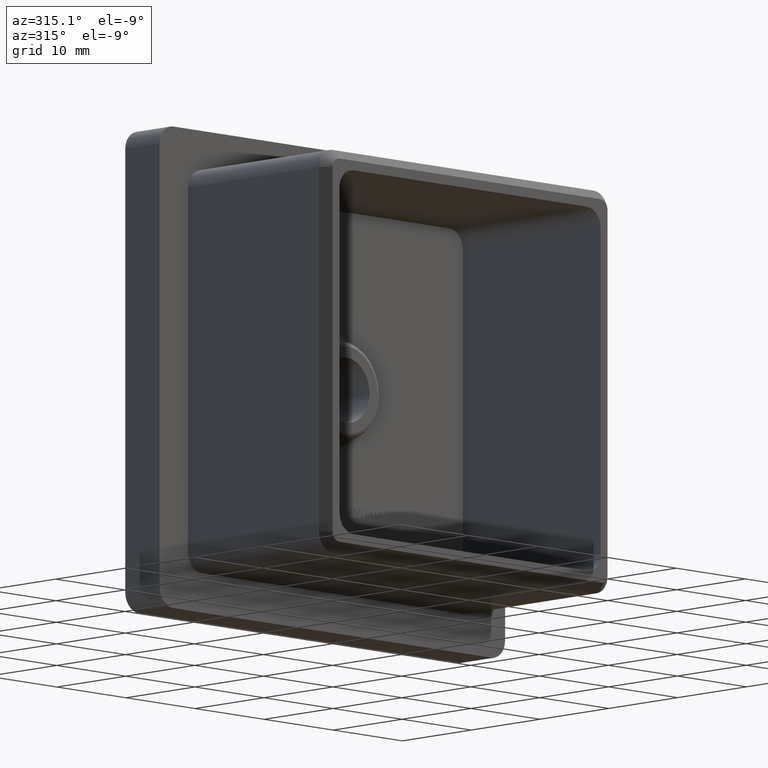
[diagram: clean part render]
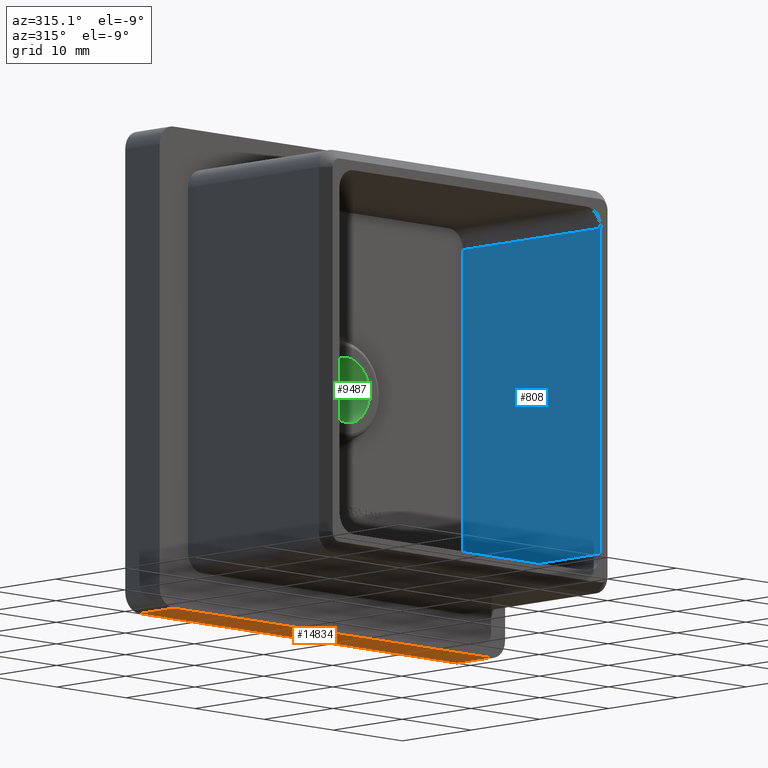
[diagram: same view with three faces highlighted in distinct colors, each labeled with its STEP entity id]
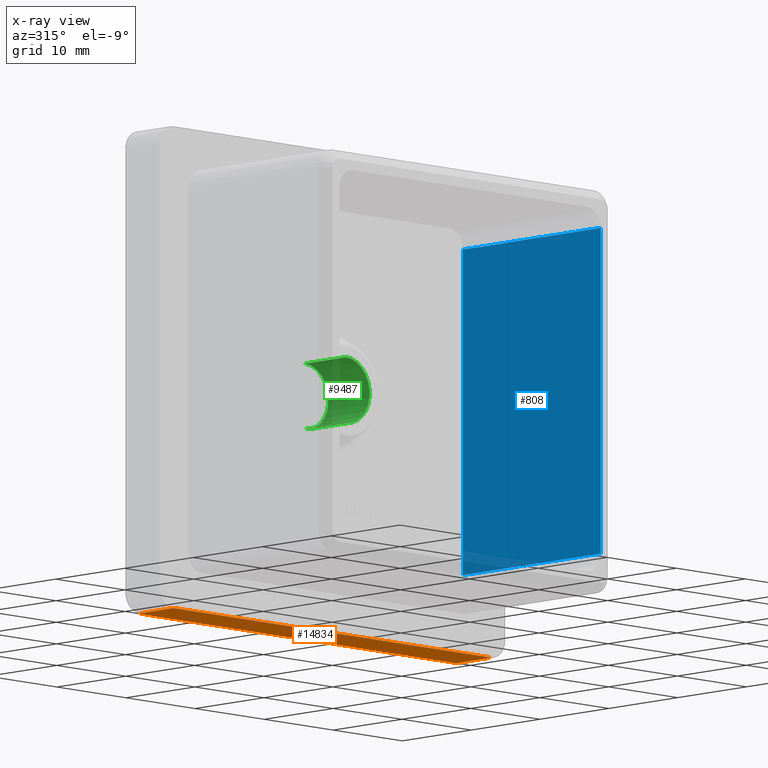
[diagram: x-ray of the same camera — body ghosted, the three highlighted faces saturated]
A machine part, auxiliary view with three faces highlighted in distinct colors.
The next image is the same camera in x-ray (body ghosted, the three faces saturated) — at least one of them is partly hidden behind the body in this view.
Their STEP definitions:

[orange] entity #14834 — the highlighted planar face has unit normal (0, 0, 1).
#54 = CARTESIAN_POINT ( 'NONE',  ( -25.00000000000000400, 5.000000000000000000, -25.00000000000000000 ) ) ;
#495 = EDGE_CURVE ( 'NONE', #12756, #3238, #11599, .T. ) ;
#689 = DIRECTION ( 'NONE',  ( -1.000000000000000000, -0.0000000000000000000, -0.0000000000000000000 ) ) ;
#1276 = VECTOR ( 'NONE', #15765, 1000.000000000000000 ) ;
#1290 = DIRECTION ( 'NONE',  ( 1.000000000000000000, 0.0000000000000000000, -0.0000000000000000000 ) ) ;
#2264 = ORIENTED_EDGE ( 'NONE', *, *, #14278, .T. ) ;
#2943 = EDGE_CURVE ( 'NONE', #10823, #10874, #16740, .T. ) ;
#2989 = DIRECTION ( 'NONE',  ( 0.0000000000000000000, 0.0000000000000000000, 1.000000000000000000 ) ) ;
#3238 = VERTEX_POINT ( 'NONE', #17752 ) ;
#3277 = FACE_OUTER_BOUND ( 'NONE', #18029, .T. ) ;
#3880 = CARTESIAN_POINT ( 'NONE',  ( -25.00000000000000400, 5.000000000000000000, -25.00000000000000000 ) ) ;
#5272 = CARTESIAN_POINT ( 'NONE',  ( 22.99999999999999600, 5.000000000000000000, -25.00000000000000000 ) ) ;
#5651 = PLANE ( 'NONE',  #11511 ) ;
#5796 = CARTESIAN_POINT ( 'NONE',  ( -23.00000000000000700, 5.000000000000000000, -25.00000000000000000 ) ) ;
#6418 = CARTESIAN_POINT ( 'NONE',  ( -25.00000000000000400, 0.0000000000000000000, -25.00000000000000000 ) ) ;
#8087 = CARTESIAN_POINT ( 'NONE',  ( -23.00000000000000700, 5.000000000000000000, -25.00000000000000000 ) ) ;
#8186 = LINE ( 'NONE', #5796, #1276 ) ;
#8247 = LINE ( 'NONE', #16365, #11771 ) ;
#8964 = VECTOR ( 'NONE', #689, 1000.000000000000000 ) ;
#9241 = DIRECTION ( 'NONE',  ( 0.0000000000000000000, -1.000000000000000000, 0.0000000000000000000 ) ) ;
#10823 = VERTEX_POINT ( 'NONE', #5272 ) ;
#10874 = VERTEX_POINT ( 'NONE', #8087 ) ;
#11484 = EDGE_CURVE ( 'NONE', #10823, #12756, #8247, .T. ) ;
#11511 = AXIS2_PLACEMENT_3D ( 'NONE', #54, #2989, #1290 ) ;
#11599 = LINE ( 'NONE', #6418, #8964 ) ;
#11771 = VECTOR ( 'NONE', #9241, 1000.000000000000000 ) ;
#12756 = VERTEX_POINT ( 'NONE', #15142 ) ;
#12904 = VECTOR ( 'NONE', #15265, 1000.000000000000000 ) ;
#13155 = ORIENTED_EDGE ( 'NONE', *, *, #2943, .F. ) ;
#14278 = EDGE_CURVE ( 'NONE', #3238, #10874, #8186, .T. ) ;
#14834 = ADVANCED_FACE ( 'NONE', ( #3277 ), #5651, .F. ) ;
#15142 = CARTESIAN_POINT ( 'NONE',  ( 22.99999999999999600, 0.0000000000000000000, -25.00000000000000000 ) ) ;
#15265 = DIRECTION ( 'NONE',  ( -1.000000000000000000, -0.0000000000000000000, -0.0000000000000000000 ) ) ;
#15478 = ORIENTED_EDGE ( 'NONE', *, *, #11484, .T. ) ;
#15693 = ORIENTED_EDGE ( 'NONE', *, *, #495, .T. ) ;
#15765 = DIRECTION ( 'NONE',  ( -0.0000000000000000000, 1.000000000000000000, -0.0000000000000000000 ) ) ;
#16365 = CARTESIAN_POINT ( 'NONE',  ( 22.99999999999999600, 5.000000000000000000, -25.00000000000000000 ) ) ;
#16740 = LINE ( 'NONE', #3880, #12904 ) ;
#17752 = CARTESIAN_POINT ( 'NONE',  ( -23.00000000000000700, 0.0000000000000000000, -25.00000000000000000 ) ) ;
#18029 = EDGE_LOOP ( 'NONE', ( #13155, #15478, #15693, #2264 ) ) ;

[blue] entity #808 — the highlighted planar face has unit normal (-1, 0, -0).
#43 = EDGE_CURVE ( 'NONE', #15660, #11366, #8084, .T. ) ;
#82 = DIRECTION ( 'NONE',  ( 0.0000000000000000000, 1.000000000000000000, 0.0000000000000000000 ) ) ;
#808 = ADVANCED_FACE ( 'NONE', ( #11379 ), #6576, .T. ) ;
#816 = VERTEX_POINT ( 'NONE', #13615 ) ;
#2398 = CARTESIAN_POINT ( 'NONE',  ( 18.89999999999999100, -20.00000000000000000, 16.89999999999999100 ) ) ;
#3068 = CARTESIAN_POINT ( 'NONE',  ( 18.89999999999999100, 0.0000000000000000000, 16.89999999999999100 ) ) ;
#3676 = CARTESIAN_POINT ( 'NONE',  ( 18.89999999999999100, 0.0000000000000000000, 16.89999999999999100 ) ) ;
#4276 = EDGE_CURVE ( 'NONE', #816, #13640, #4432, .T. ) ;
#4432 = LINE ( 'NONE', #18457, #8888 ) ;
#4800 = CARTESIAN_POINT ( 'NONE',  ( 18.89999999999999100, 0.0000000000000000000, -16.89999999999999500 ) ) ;
#5255 = CARTESIAN_POINT ( 'NONE',  ( 18.89999999999999100, 0.0000000000000000000, 18.89999999999999100 ) ) ;
#5496 = ORIENTED_EDGE ( 'NONE', *, *, #17670, .T. ) ;
#5765 = LINE ( 'NONE', #3068, #17369 ) ;
#5948 = EDGE_CURVE ( 'NONE', #13640, #11366, #5765, .T. ) ;
#6096 = ORIENTED_EDGE ( 'NONE', *, *, #4276, .T. ) ;
#6123 = CARTESIAN_POINT ( 'NONE',  ( 18.89999999999999100, -20.00000000000000000, -16.89999999999999100 ) ) ;
#6576 = PLANE ( 'NONE',  #9412 ) ;
#6640 = DIRECTION ( 'NONE',  ( -0.0000000000000000000, 0.0000000000000000000, 1.000000000000000000 ) ) ;
#6689 = DIRECTION ( 'NONE',  ( -0.0000000000000000000, -0.0000000000000000000, 1.000000000000000000 ) ) ;
#7013 = LINE ( 'NONE', #6123, #13221 ) ;
#8084 = LINE ( 'NONE', #5255, #18317 ) ;
#8888 = VECTOR ( 'NONE', #9925, 1000.000000000000000 ) ;
#9412 = AXIS2_PLACEMENT_3D ( 'NONE', #16622, #12104, #6640 ) ;
#9925 = DIRECTION ( 'NONE',  ( -0.0000000000000000000, -0.0000000000000000000, 1.000000000000000000 ) ) ;
#10527 = DIRECTION ( 'NONE',  ( -0.0000000000000000000, -1.000000000000000000, -0.0000000000000000000 ) ) ;
#11366 = VERTEX_POINT ( 'NONE', #3676 ) ;
#11379 = FACE_OUTER_BOUND ( 'NONE', #17911, .T. ) ;
#11615 = ORIENTED_EDGE ( 'NONE', *, *, #5948, .T. ) ;
#12104 = DIRECTION ( 'NONE',  ( -1.000000000000000000, 0.0000000000000000000, -0.0000000000000000000 ) ) ;
#13221 = VECTOR ( 'NONE', #10527, 1000.000000000000000 ) ;
#13615 = CARTESIAN_POINT ( 'NONE',  ( 18.89999999999999100, -20.00000000000000000, -16.89999999999999500 ) ) ;
#13640 = VERTEX_POINT ( 'NONE', #2398 ) ;
#14445 = ORIENTED_EDGE ( 'NONE', *, *, #43, .F. ) ;
#15660 = VERTEX_POINT ( 'NONE', #4800 ) ;
#16622 = CARTESIAN_POINT ( 'NONE',  ( 18.89999999999999100, -20.00000000000000000, 18.89999999999999100 ) ) ;
#17369 = VECTOR ( 'NONE', #82, 1000.000000000000000 ) ;
#17670 = EDGE_CURVE ( 'NONE', #15660, #816, #7013, .T. ) ;
#17911 = EDGE_LOOP ( 'NONE', ( #14445, #5496, #6096, #11615 ) ) ;
#18317 = VECTOR ( 'NONE', #6689, 1000.000000000000000 ) ;
#18457 = CARTESIAN_POINT ( 'NONE',  ( 18.89999999999999100, -20.00000000000000000, 18.89999999999999100 ) ) ;

[green] entity #9487 — the highlighted cylindrical surface (edge-blend (fillet) strip) has radius 3.4 mm, axis along (-0, -1, -0).
#58 = DIRECTION ( 'NONE',  ( -0.0000000000000000000, -1.000000000000000000, -0.0000000000000000000 ) ) ;
#245 = FACE_OUTER_BOUND ( 'NONE', #3659, .T. ) ;
#893 = CIRCLE ( 'NONE', #7286, 3.399999999999996800 ) ;
#1010 = CARTESIAN_POINT ( 'NONE',  ( 6.613092715395703500E-016, 4.000000000000016000, 3.399999999999996400 ) ) ;
#2181 = CARTESIAN_POINT ( 'NONE',  ( 2.449293598294707400E-016, 4.000000000000016000, 0.0000000000000000000 ) ) ;
#2675 = VERTEX_POINT ( 'NONE', #18406 ) ;
#3659 = EDGE_LOOP ( 'NONE', ( #11269, #8882, #17983, #5657 ) ) ;
#3663 = EDGE_CURVE ( 'NONE', #12353, #5103, #893, .T. ) ;
#3929 = EDGE_CURVE ( 'NONE', #4567, #5103, #5999, .T. ) ;
#4354 = CARTESIAN_POINT ( 'NONE',  ( 6.613092715395703500E-016, -2.000000000000000400, 3.399999999999996400 ) ) ;
#4435 = DIRECTION ( 'NONE',  ( 0.0000000000000000000, 0.0000000000000000000, -1.000000000000000000 ) ) ;
#4567 = VERTEX_POINT ( 'NONE', #1010 ) ;
#5099 = DIRECTION ( 'NONE',  ( -0.0000000000000000000, 1.000000000000000000, -0.0000000000000000000 ) ) ;
#5103 = VERTEX_POINT ( 'NONE', #7639 ) ;
#5156 = AXIS2_PLACEMENT_3D ( 'NONE', #2181, #5099, #12116 ) ;
#5540 = CARTESIAN_POINT ( 'NONE',  ( 2.449293598294707400E-016, -2.000000000000000400, 0.0000000000000000000 ) ) ;
#5580 = CYLINDRICAL_SURFACE ( 'NONE', #16165, 3.399999999999996400 ) ;
#5657 = ORIENTED_EDGE ( 'NONE', *, *, #3663, .T. ) ;
#5999 = LINE ( 'NONE', #4354, #12871 ) ;
#7286 = AXIS2_PLACEMENT_3D ( 'NONE', #7429, #14461, #4435 ) ;
#7429 = CARTESIAN_POINT ( 'NONE',  ( 2.449293598294707400E-016, -2.000000000000000400, 0.0000000000000000000 ) ) ;
#7639 = CARTESIAN_POINT ( 'NONE',  ( 6.613092715395704500E-016, -2.000000000000000400, 3.399999999999997200 ) ) ;
#8625 = LINE ( 'NONE', #15394, #18002 ) ;
#8882 = ORIENTED_EDGE ( 'NONE', *, *, #9043, .T. ) ;
#9043 = EDGE_CURVE ( 'NONE', #4567, #2675, #15207, .T. ) ;
#9487 = ADVANCED_FACE ( 'NONE', ( #245 ), #5580, .F. ) ;
#9662 = CARTESIAN_POINT ( 'NONE',  ( 2.449293598294707400E-016, -2.000000000000000400, -3.399999999999996800 ) ) ;
#11269 = ORIENTED_EDGE ( 'NONE', *, *, #3929, .F. ) ;
#11380 = DIRECTION ( 'NONE',  ( -0.0000000000000000000, -1.000000000000000000, -0.0000000000000000000 ) ) ;
#12116 = DIRECTION ( 'NONE',  ( 0.0000000000000000000, 0.0000000000000000000, 1.000000000000000000 ) ) ;
#12353 = VERTEX_POINT ( 'NONE', #9662 ) ;
#12507 = DIRECTION ( 'NONE',  ( -0.0000000000000000000, -1.000000000000000000, -0.0000000000000000000 ) ) ;
#12871 = VECTOR ( 'NONE', #58, 1000.000000000000000 ) ;
#14117 = EDGE_CURVE ( 'NONE', #2675, #12353, #8625, .T. ) ;
#14461 = DIRECTION ( 'NONE',  ( -0.0000000000000000000, -1.000000000000000000, -0.0000000000000000000 ) ) ;
#15207 = CIRCLE ( 'NONE', #5156, 3.399999999999996400 ) ;
#15394 = CARTESIAN_POINT ( 'NONE',  ( 2.449293598294707400E-016, -2.000000000000000400, -3.399999999999996400 ) ) ;
#15697 = DIRECTION ( 'NONE',  ( 0.0000000000000000000, 0.0000000000000000000, -1.000000000000000000 ) ) ;
#16165 = AXIS2_PLACEMENT_3D ( 'NONE', #5540, #11380, #15697 ) ;
#17983 = ORIENTED_EDGE ( 'NONE', *, *, #14117, .T. ) ;
#18002 = VECTOR ( 'NONE', #12507, 1000.000000000000000 ) ;
#18406 = CARTESIAN_POINT ( 'NONE',  ( 2.449293598294707400E-016, 4.000000000000016000, -3.399999999999996400 ) ) ;